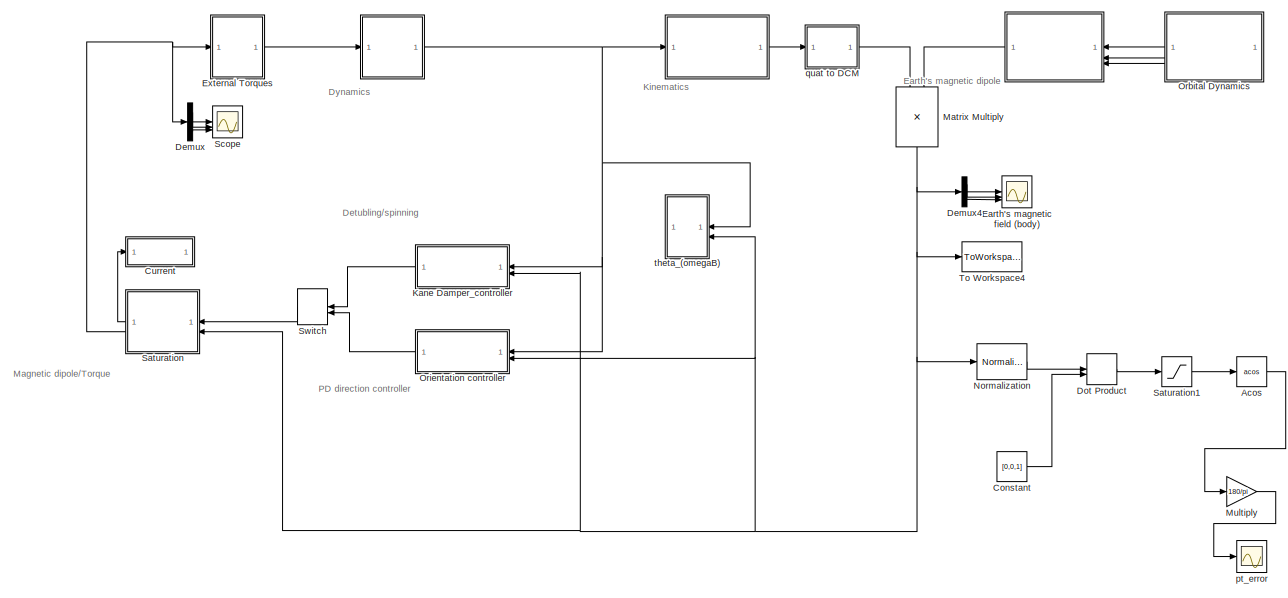
[diagram: root canvas - part 1/2, left side, full height]
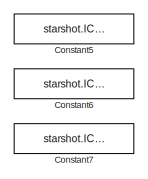
[diagram: root canvas - part 2/2, middle right region]
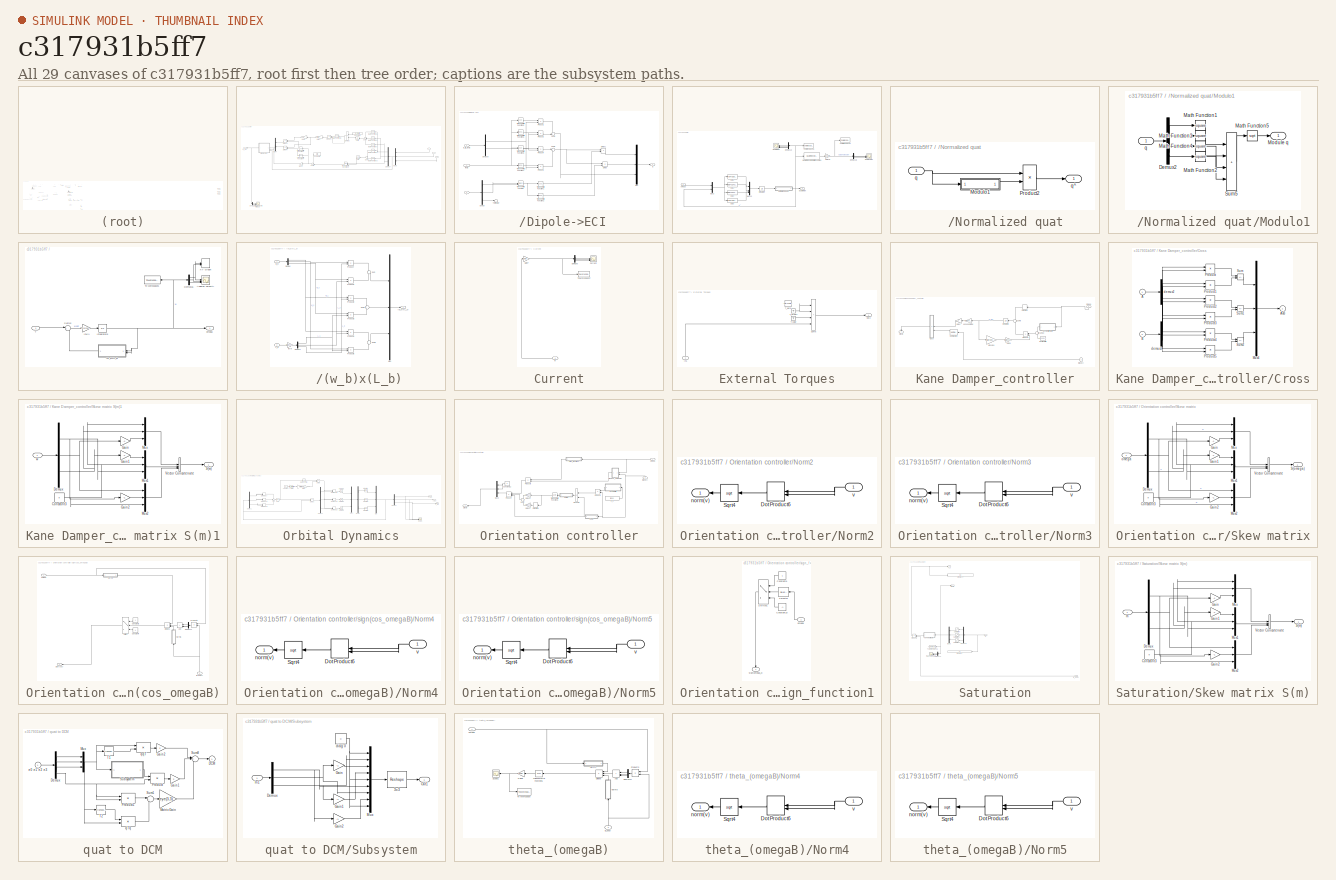
[diagram: thumbnail index - all 29 canvases of the model, root first then tree order]
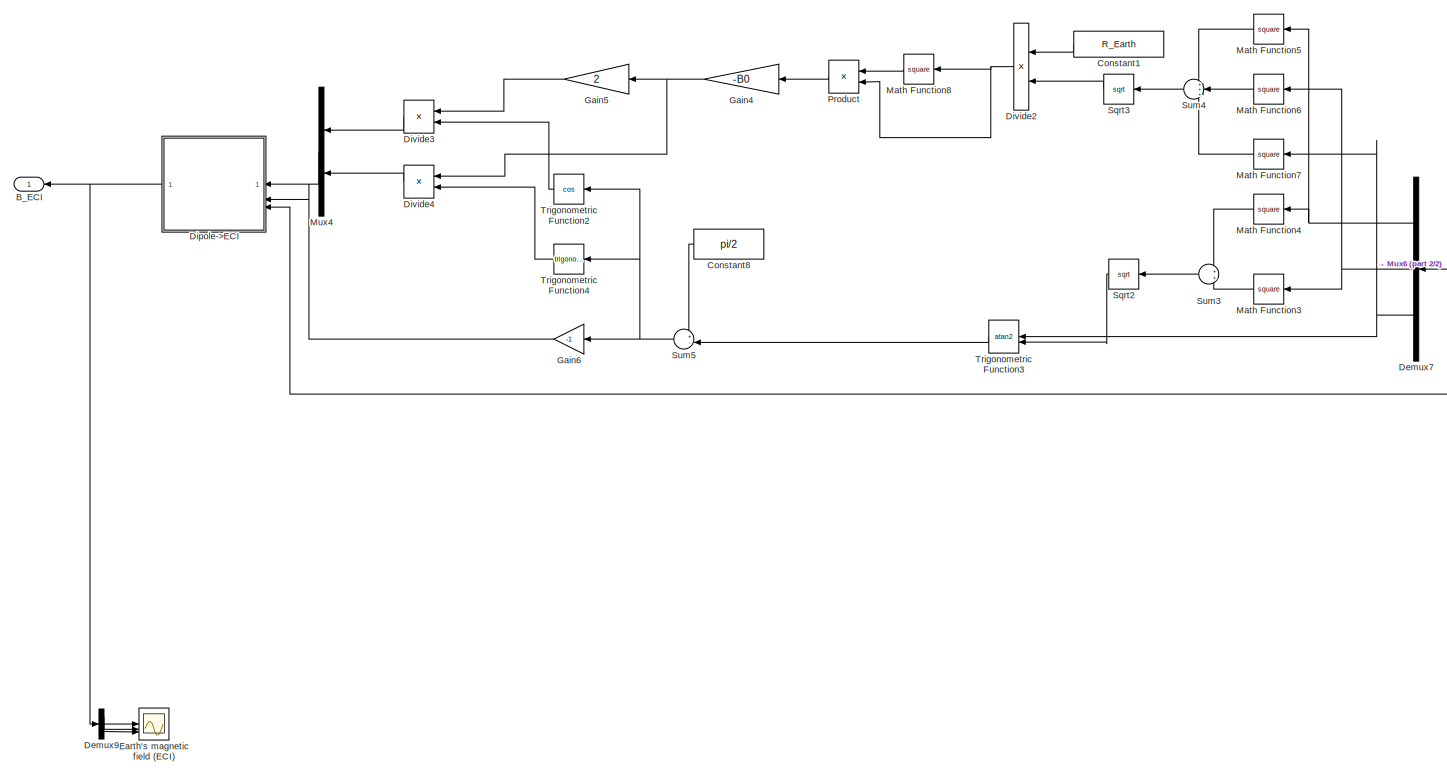
[diagram:   - part 1/2, most of the canvas]
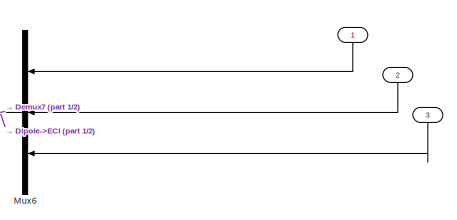
[diagram:   - part 2/2, middle right region]
MODEL slx_c317931b5ff7
KIND model
CONFIG AbsTol = auto
CONFIG EnableMultiTasking = off
CONFIG FixedStep = auto
CONFIG MaxStep = 4.0
CONFIG MinStep = .001
CONFIG RelTol = 1e-6
CONFIG SampleTimeConstraint = Unconstrained
CONFIG SolverName = ode45
CONFIG StartTime = 0
CONFIG StopTime = 350000
BLOCK [SubSystem]  
BLOCK [SubSystem]    
BLOCK [SubSystem]      
BLOCK [SubSystem]      /(w_b)x(L_b)
BLOCK [Outport]      /(w_b)x(L_b)/(w_b)x(L_b)
BLOCK [Demux]      /(w_b)x(L_b)/Demux
  Outputs = 3
BLOCK [Demux]      /(w_b)x(L_b)/Demux1
  Outputs = 3
BLOCK [Gain]      /(w_b)x(L_b)/Inv(I)
  Gain = starshot.IC.massproperties.I
  Multiplication = Matrix(K*u)
BLOCK [Inport]      /(w_b)x(L_b)/L_b
  Port = 2
BLOCK [Mux]      /(w_b)x(L_b)/Mux
  DisplayOption = bar
  Inputs = 3
BLOCK [Product]      /(w_b)x(L_b)/Product
BLOCK [Product]      /(w_b)x(L_b)/Product1
BLOCK [Product]      /(w_b)x(L_b)/Product2
BLOCK [Product]      /(w_b)x(L_b)/Product3
BLOCK [Product]      /(w_b)x(L_b)/Product4
BLOCK [Product]      /(w_b)x(L_b)/Product5
BLOCK [Sum]      /(w_b)x(L_b)/Sum
  Inputs = +|-
BLOCK [Sum]      /(w_b)x(L_b)/Sum1
  Inputs = -|+
BLOCK [Sum]      /(w_b)x(L_b)/Sum2
  Inputs = +|-
BLOCK [Inport]      /(w_b)x(L_b)/w_b
BLOCK [Scope]      /Angular velocity
  Floating = off
  NumInputPorts = 3
  ScopeSpecificationString = Simulink.scopes.TimeScopeBlockCfg('CurrentConfiguration', extmgr.ConfigurationSet(extmgr.Configuration('Core','General UI',true),extmgr.Configuration('Core','Source UI',true),extmgr.Configuration('Sources','WiredSimulink',true,'DataLoggingVariableName','ScopeData1'),extmgr.Configuration('Visuals','Time Domain',true,'SerializedDisplays',{struct('MinYLimReal','-0.741','MaxYLimReal','0.66904','YLabel...<+2792ch>
BLOCK [Demux]      /Demux16
  Outputs = 3
BLOCK [Integrator]      /Integrator6
  InitialCondition = starshot.IC.w
BLOCK [Gain]      /Inv(I)
  Gain = starshot.IC.massproperties.Iinv
  Multiplication = Matrix(K*u)
BLOCK [Sum]      /Sum12
  Inputs = |+-
BLOCK [Inport]      /T
BLOCK [ToWorkspace]      /To Workspace1
  FixptAsFi = on
  MaxDataPoints = inf
  SampleTime = -1
  SaveFormat = Timeseries
  VariableName = w
BLOCK [Record]      /XY Graph
  CompatibilityTag = XY
  FileSettingsInternal = {"entries":[{"content":{"excelSettings":{"content":{},"type":"Streamout.ExcelSettings"}},"type":"Streamout.FileSettingStorage","uuid":""}],"packageUris":["http:\/\/schema.mathworks.com\/mf0\/streamout_blocks\/R2020a"],"version":"1.0"}
  Layout = [1 1]
  SignalsInternal = {"entries":[{"content":{"signals":[{"content":{"blockPath":[],"dimensions":[1],"domain":"","lineColor":"#a2142f","plots":[1],"port":1,"sid":[""],"signalID":6903,"signalName":"Demux16:1"},"type":"RecordBlkView.Signal","uuid":""},{"content":{"blockPath":[],"dimensions":[1],"domain":"","lineColor":"#139fff","plots":[1],"port":2,"sid":[""],"signalID":6907,"signalName":"Demux16:2"},"type":"RecordBlkVie...<+166ch>
  VisualizationBindings = {"xyplotplugin":{"info":[{"series":[{"bindingParametersList":[{"parameter":"X-Axis","signalID":6903,"signalName":"Demux16:1"},{"parameter":"Y-Axis","signalID":6907,"signalName":"Demux16:2"}],"seriesID":40371}],"subplotID":1}]}}
  st = -1
BLOCK [Outport]      /omega
BLOCK [Demux]    /Demux13
BLOCK [Demux]    /Demux18
  Outputs = 3
BLOCK [Scope]    /Euler angles
  Floating = off
  NumInputPorts = 3
  ScopeSpecificationString = Simulink.scopes.TimeScopeBlockCfg('CurrentConfiguration', extmgr.ConfigurationSet(extmgr.Configuration('Core','General UI',true),extmgr.Configuration('Core','Source UI',true),extmgr.Configuration('Sources','WiredSimulink',true,'DataLoggingVariableName','ScopeData2'),extmgr.Configuration('Visuals','Time Domain',true,'SerializedDisplays',{struct('MinYLimReal','-224.97937','MaxYLimReal','224.98449','...<+2815ch>
BLOCK [Gain]    /Gain18
  Gain = 180/pi
BLOCK [Integrator]    /Integrator7
  InitialCondition = q0
BLOCK [Mux]    /Mux10
  DisplayOption = bar
BLOCK [Mux]    /Mux3
  DisplayOption = bar
  Inputs = 2
BLOCK [SubSystem]    /Normalized quat
BLOCK [SubSystem]    /Normalized quat/Modulo1
BLOCK [Demux]    /Normalized quat/Modulo1/Demux2
  DisplayOption = none
BLOCK [Math]    /Normalized quat/Modulo1/Math Function1
  Operator = square
  SignedPower = on
BLOCK [Math]    /Normalized quat/Modulo1/Math Function2
  Operator = square
  SignedPower = on
BLOCK [Math]    /Normalized quat/Modulo1/Math Function3
  Operator = square
  SignedPower = on
BLOCK [Math]    /Normalized quat/Modulo1/Math Function4
  Operator = square
  SignedPower = on
BLOCK [Math]    /Normalized quat/Modulo1/Math Function5
  Operator = sqrt
  SignedPower = on
BLOCK [Outport]    /Normalized quat/Modulo1/Module q
BLOCK [Sum]    /Normalized quat/Modulo1/Sum5
  IconShape = rectangular
  Inputs = |++++
  SaturateOnIntegerOverflow = on
BLOCK [Inport]    /Normalized quat/Modulo1/q
BLOCK [Product]    /Normalized quat/Product2
  Inputs = */
  OutDataTypeStr = Inherit: Same as first input
  SaturateOnIntegerOverflow = on
BLOCK [Inport]    /Normalized quat/q
BLOCK [Outport]    /Normalized quat/q^
BLOCK [Scope]    /Quaternion
  Floating = off
  NumInputPorts = 4
  ScopeSpecificationString = Simulink.scopes.TimeScopeBlockCfg('CurrentConfiguration', extmgr.ConfigurationSet(extmgr.Configuration('Core','General UI',true),extmgr.Configuration('Core','Source UI',true),extmgr.Configuration('Sources','WiredSimulink',true,'DataLoggingVariableName','ScopeData3'),extmgr.Configuration('Visuals','Time Domain',true,'SerializedDisplays',{struct('MinYLimReal','-1.22386','MaxYLimReal','1.22384','YLab...<+3460ch>
BLOCK [Reference]    /Quaternions to Rotation Angles  REF=sharedtransform/Quaternions to Rotation Angles
  AttributesFormatString = Rotation Order: %<rotationOrder>
  SourceBlock = sharedtransform/Quaternions to Rotation Angles
  SourceType = Quat2Ang
BLOCK [ToWorkspace]    /To Workspace2
  FixptAsFi = on
  MaxDataPoints = inf
  SampleTime = -1
  SaveFormat = Timeseries
  VariableName = Eul1
BLOCK [ToWorkspace]    /To Workspace6
  FixptAsFi = on
  MaxDataPoints = inf
  SampleTime = -1
  SaveFormat = Timeseries
  VariableName = q
BLOCK [Inport]    /omega
BLOCK [Fcn]    /qd(0)
  Expr = (u(7)*u(1)-u(6)*u(2)+u(5)*u(3))/2
BLOCK [Fcn]    /qd(1)
  Expr = (u(6)*u(1)+u(7)*u(2)-u(4)*u(3))/2
BLOCK [Fcn]    /qd(2)
  Expr = (-u(5)*u(1)+u(4)*u(2)+u(7)*u(3))/2
BLOCK [Fcn]    /qd(3)
  Expr = (-u(4)*u(1)-u(5)*u(2)-u(6)*u(3))/2
BLOCK [Outport]    /quaternion
BLOCK [Inport]  / 
  NameLocation = right
  Port = 3
BLOCK [Outport]  /B_ECI
BLOCK [Constant]  /Constant1
  Value = R_Earth
BLOCK [Constant]  /Constant8
  Value = pi/2
BLOCK [Demux]  /Demux7
  Outputs = 3
BLOCK [Demux]  /Demux9
  Outputs = 3
BLOCK [SubSystem]  /Dipole->ECI
BLOCK [Inport]  /Dipole->ECI/-theta
  Port = 2
BLOCK [Outport]  /Dipole->ECI/B
BLOCK [Inport]  /Dipole->ECI/B_r,B_theta
BLOCK [Demux]  /Dipole->ECI/Demux
  Outputs = 3
BLOCK [Demux]  /Dipole->ECI/Demux8
  Outputs = 2
BLOCK [Product]  /Dipole->ECI/Divide
  Inputs = **
BLOCK [Product]  /Dipole->ECI/Divide1
  Inputs = **
BLOCK [Mux]  /Dipole->ECI/Mux
  DisplayOption = bar
  Inputs = 3
BLOCK [Product]  /Dipole->ECI/Product1
BLOCK [Product]  /Dipole->ECI/Product2
BLOCK [Product]  /Dipole->ECI/Product3
BLOCK [Product]  /Dipole->ECI/Product4
BLOCK [Sum]  /Dipole->ECI/Sum5
  Inputs = +-|
BLOCK [Sum]  /Dipole->ECI/Sum6
  Inputs = |++
BLOCK [Terminator]  /Dipole->ECI/Terminator
BLOCK [Trigonometry]  /Dipole->ECI/Trigonometric Function
  Operator = atan2
BLOCK [Trigonometry]  /Dipole->ECI/Trigonometric Function1
  Operator = cos
BLOCK [Trigonometry]  /Dipole->ECI/Trigonometric Function2
BLOCK [Trigonometry]  /Dipole->ECI/Trigonometric Function5
  Operator = cos
BLOCK [Trigonometry]  /Dipole->ECI/Trigonometric Function6
BLOCK [Trigonometry]  /Dipole->ECI/Trigonometric Function7
BLOCK [Trigonometry]  /Dipole->ECI/Trigonometric Function8
  Operator = cos
BLOCK [Inport]  /Dipole->ECI/r
  Port = 3
BLOCK [Product]  /Divide2
  Inputs = */
BLOCK [Product]  /Divide3
  Inputs = **
BLOCK [Product]  /Divide4
  Inputs = **
BLOCK [Scope]  /Earth's magnetic field (ECI)
  Floating = off
  NumInputPorts = 3
  ScopeSpecificationString = Simulink.scopes.TimeScopeBlockCfg('CurrentConfiguration', extmgr.ConfigurationSet(extmgr.Configuration('Core','General UI',true),extmgr.Configuration('Core','Source UI',true),extmgr.Configuration('Sources','WiredSimulink',true,'DataLoggingVariableName','ScopeData4'),extmgr.Configuration('Visuals','Time Domain',true,'SerializedDisplays',{struct('MinYLimReal','-0.0000027','MaxYLimReal','0.0000027','...<+2790ch>
BLOCK [Gain]  /Gain4
  Gain = -B0
BLOCK [Gain]  /Gain5
  Gain = 2
BLOCK [Gain]  /Gain6
  Gain = -1
BLOCK [Math]  /Math Function3
  Operator = square
  SignedPower = on
BLOCK [Math]  /Math Function4
  Operator = square
  SignedPower = on
BLOCK [Math]  /Math Function5
  Operator = square
  SignedPower = on
BLOCK [Math]  /Math Function6
  Operator = square
  SignedPower = on
BLOCK [Math]  /Math Function7
  Operator = square
  SignedPower = on
BLOCK [Math]  /Math Function8
  Operator = square
  SignedPower = on
BLOCK [Mux]  /Mux4
  DisplayOption = bar
  Inputs = 2
BLOCK [Mux]  /Mux6
  DisplayOption = bar
  Inputs = 3
BLOCK [Product]  /Product
BLOCK [Sqrt]  /Sqrt2
BLOCK [Sqrt]  /Sqrt3
BLOCK [Sum]  /Sum3
BLOCK [Sum]  /Sum4
  Inputs = +++
BLOCK [Sum]  /Sum5
  Inputs = +-|
BLOCK [Trigonometry]  /Trigonometric Function2
  Operator = cos
BLOCK [Trigonometry]  /Trigonometric Function3
  Operator = atan2
BLOCK [Trigonometry]  /Trigonometric Function4
BLOCK [Trigonometry] Acos
  Operator = acos
BLOCK [Constant] Constant
  Value = [0,0,1]
BLOCK [Constant] Constant5
  Commented = on
  Value = starshot.IC.x
BLOCK [Constant] Constant6
  Commented = on
  Value = starshot.IC.y
BLOCK [Constant] Constant7
  Commented = on
  Value = starshot.IC.z
BLOCK [SubSystem] Current
BLOCK [Scope] Current/Current
  Floating = off
  NumInputPorts = 3
  ScopeSpecificationString = Simulink.scopes.TimeScopeBlockCfg('CurrentConfiguration', extmgr.ConfigurationSet(extmgr.Configuration('Core','General UI',true),extmgr.Configuration('Core','Source UI',true),extmgr.Configuration('Sources','WiredSimulink',true,'DataLoggingVariableName','ScopeData1'),extmgr.Configuration('Visuals','Time Domain',true,'SerializedDisplays',{struct('MinYLimReal','-0.03866','MaxYLimReal','0.03898','YLab...<+2741ch>
BLOCK [Demux] Current/Demux5
  Outputs = 3
BLOCK [Gain] Current/Gain7
  Gain = 1/starshot.magnetorq.k/starshot.magnetorq.n/starshot.magnetorq.A
BLOCK [ToWorkspace] Current/To Workspace7
  FixptAsFi = on
  MaxDataPoints = inf
  SampleTime = -1
  SaveFormat = Timeseries
  VariableName = current
BLOCK [Inport] Current/m
BLOCK [Demux] Demux
  Outputs = 3
BLOCK [Demux] Demux4
  Outputs = 3
BLOCK [DotProduct] Dot Product
  OutDataTypeStr = Inherit: Inherit via internal rule
BLOCK [Scope] Earth's magnetic field (body)
  Floating = off
  NumInputPorts = 3
  ScopeSpecificationString = Simulink.scopes.TimeScopeBlockCfg('CurrentConfiguration', extmgr.ConfigurationSet(extmgr.Configuration('Core','General UI',true),extmgr.Configuration('Core','Source UI',true),extmgr.Configuration('Sources','WiredSimulink',true,'DataLoggingVariableName','ScopeData2'),extmgr.Configuration('Visuals','Time Domain',true,'SerializedDisplays',{struct('MinYLimReal','-0.000034','MaxYLimReal','0.000035','YL...<+2805ch>
BLOCK [SubSystem] External Torques
BLOCK [Inport] External Torques/In1
  NameLocation = right
BLOCK [Outport] External Torques/Out2
BLOCK [Sum] External Torques/Sum6
  IconShape = rectangular
  Inputs = ++++
BLOCK [Constant] External Torques/T_aero
  Commented = on
  Value = -starshot.aerodrag.Ta
BLOCK [Ground] External Torques/T_gravity
BLOCK [Ground] External Torques/T_solar
BLOCK [SubSystem] Kane Damper_controller
BLOCK [Inport] Kane Damper_controller/B(body)
  NameLocation = top
  Port = 2
BLOCK [SubSystem] Kane Damper_controller/Cross
BLOCK [Inport] Kane Damper_controller/Cross/A
BLOCK [Outport] Kane Damper_controller/Cross/AxB
  InitialOutput = 0
BLOCK [Inport] Kane Damper_controller/Cross/B
  Port = 2
BLOCK [Mux] Kane Damper_controller/Cross/Mux4
  Inputs = 3
BLOCK [Product] Kane Damper_controller/Cross/Product
  InputSameDT = on
  OutDataTypeStr = Inherit: Same as first input
  SaturateOnIntegerOverflow = on
BLOCK [Product] Kane Damper_controller/Cross/Product1
  InputSameDT = on
  OutDataTypeStr = Inherit: Same as first input
  SaturateOnIntegerOverflow = on
BLOCK [Product] Kane Damper_controller/Cross/Product2
  InputSameDT = on
  OutDataTypeStr = Inherit: Same as first input
  SaturateOnIntegerOverflow = on
BLOCK [Product] Kane Damper_controller/Cross/Product3
  InputSameDT = on
  OutDataTypeStr = Inherit: Same as first input
  SaturateOnIntegerOverflow = on
BLOCK [Product] Kane Damper_controller/Cross/Product4
  InputSameDT = on
  OutDataTypeStr = Inherit: Same as first input
  SaturateOnIntegerOverflow = on
BLOCK [Product] Kane Damper_controller/Cross/Product5
  InputSameDT = on
  OutDataTypeStr = Inherit: Same as first input
  SaturateOnIntegerOverflow = on
BLOCK [Sum] Kane Damper_controller/Cross/Sum
  IconShape = rectangular
  InputSameDT = on
  Inputs = +-
  OutDataTypeStr = Inherit: Same as first input
  SaturateOnIntegerOverflow = on
BLOCK [Sum] Kane Damper_controller/Cross/Sum1
  IconShape = rectangular
  InputSameDT = on
  Inputs = +-
  OutDataTypeStr = Inherit: Same as first input
  SaturateOnIntegerOverflow = on
BLOCK [Sum] Kane Damper_controller/Cross/Sum2
  IconShape = rectangular
  InputSameDT = on
  Inputs = +-
  OutDataTypeStr = Inherit: Same as first input
  SaturateOnIntegerOverflow = on
BLOCK [Demux] Kane Damper_controller/Cross/demux2
  DisplayOption = none
  Outputs = 3
BLOCK [Demux] Kane Damper_controller/Cross/demux3
  DisplayOption = none
  Outputs = 3
BLOCK [Derivative] Kane Damper_controller/Derivative
BLOCK [Outport] Kane Damper_controller/Dipole
  NameLocation = right
BLOCK [Gain] Kane Damper_controller/Gain 1
  Gain = -1
  NameLocation = top
  OutDataTypeStr = Inherit: Same as input
  ParamDataTypeStr = Inherit: Same as input
  SaturateOnIntegerOverflow = on
BLOCK [Gain] Kane Damper_controller/Gain 8
  Gain = starshot.cmd.c
  OutDataTypeStr = Inherit: Same as input
  ParamDataTypeStr = Inherit: Same as input
  SaturateOnIntegerOverflow = on
BLOCK [Gain] Kane Damper_controller/Id inverse
  Gain = starshot.cmd.invId
  Multiplication = Matrix(K*u)
  OutDataTypeStr = Inherit: Same as input
  ParamDataTypeStr = Inherit: Same as input
  SaturateOnIntegerOverflow = on
BLOCK [Constant] Kane Damper_controller/Identity matrix
  Value = [1 0 0;0 1 0;0 0 1]
BLOCK [Integrator] Kane Damper_controller/Integrator8
  InitialCondition = starshot.cmd.wdb0
BLOCK [Gain] Kane Damper_controller/Kane damping
  Gain = starshot.cmd.c
  OutDataTypeStr = Inherit: Same as input
  ParamDataTypeStr = Inherit: Same as input
  SaturateOnIntegerOverflow = on
BLOCK [Reference] Kane Damper_controller/Normalization  REF=dspmathops/Normalization
  SourceBlock = dspmathops/Normalization
  SourceType = Normalization
BLOCK [Inport] Kane Damper_controller/Omega
  NameLocation = right
BLOCK [Product] Kane Damper_controller/Product1
  Multiplication = Matrix(*)
BLOCK [SubSystem] Kane Damper_controller/Skew matrix S(m)1
BLOCK [Constant] Kane Damper_controller/Skew matrix S(m)1/Constant3
  Value = 0
BLOCK [Demux] Kane Damper_controller/Skew matrix S(m)1/Demux
  Outputs = 3
BLOCK [Gain] Kane Damper_controller/Skew matrix S(m)1/Gain
  Gain = -1
BLOCK [Gain] Kane Damper_controller/Skew matrix S(m)1/Gain1
  Gain = -1
BLOCK [Gain] Kane Damper_controller/Skew matrix S(m)1/Gain2
  Gain = -1
BLOCK [Mux] Kane Damper_controller/Skew matrix S(m)1/Mux
  DisplayOption = bar
  Inputs = 3
BLOCK [Mux] Kane Damper_controller/Skew matrix S(m)1/Mux1
  DisplayOption = bar
  Inputs = 3
BLOCK [Mux] Kane Damper_controller/Skew matrix S(m)1/Mux2
  DisplayOption = bar
  Inputs = 3
BLOCK [Outport] Kane Damper_controller/Skew matrix S(m)1/S(w)
BLOCK [Concatenate] Kane Damper_controller/Skew matrix S(m)1/Vector Concatenate
  ConcatenateDimension = 2
  Mode = Multidimensional array
  NumInputs = 3
BLOCK [Inport] Kane Damper_controller/Skew matrix S(m)1/w
BLOCK [Sum] Kane Damper_controller/Sum10
  InputSameDT = on
  Inputs = +|+
  OutDataTypeStr = Inherit: Same as first input
  SaturateOnIntegerOverflow = on
BLOCK [Sum] Kane Damper_controller/Sum8
  Inputs = --
BLOCK [Product] Matrix Multiply
  Multiplication = Matrix(*)
  NameLocation = left
BLOCK [Gain] Multiply
  Gain = 180/pi
BLOCK [Reference] Normalization  REF=dspmathops/Normalization
  SourceBlock = dspmathops/Normalization
  SourceType = Normalization
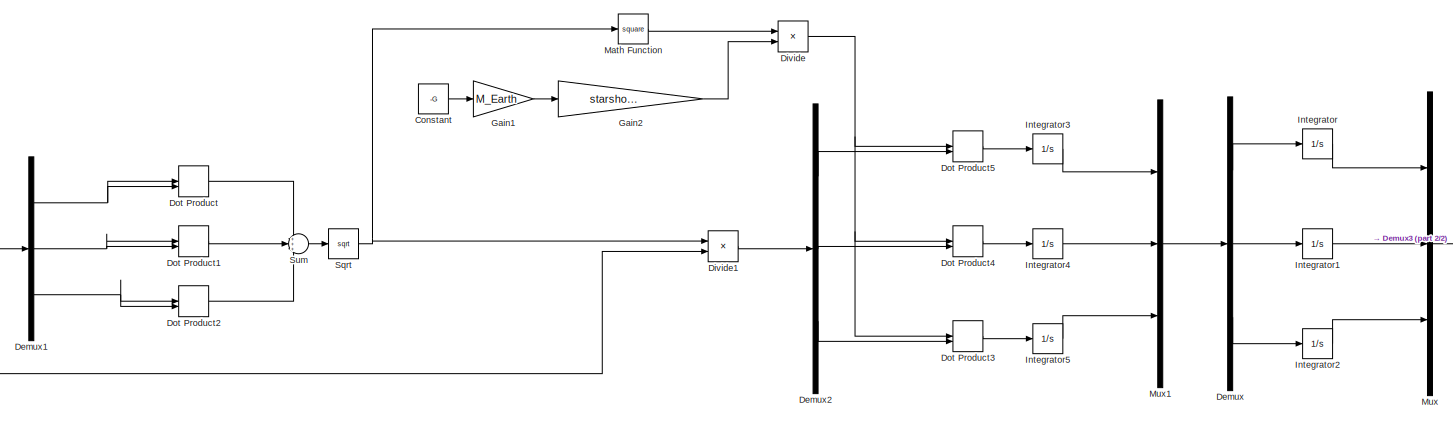
[diagram: Orbital Dynamics - part 1/2, center side, full height]
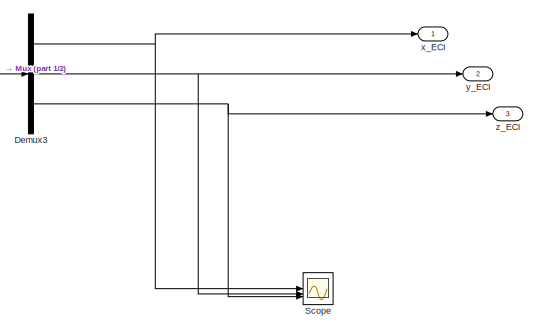
[diagram: Orbital Dynamics - part 2/2, bottom right region]
BLOCK [SubSystem] Orbital Dynamics
BLOCK [Constant] Orbital Dynamics/Constant
  Value = -G
BLOCK [Demux] Orbital Dynamics/Demux
  Outputs = 3
BLOCK [Demux] Orbital Dynamics/Demux1
  Outputs = 3
BLOCK [Demux] Orbital Dynamics/Demux2
  Outputs = 3
BLOCK [Demux] Orbital Dynamics/Demux3
  Outputs = 3
BLOCK [Product] Orbital Dynamics/Divide
  Inputs = /*
BLOCK [Product] Orbital Dynamics/Divide1
  Inputs = /*
BLOCK [DotProduct] Orbital Dynamics/Dot Product
  OutDataTypeStr = Inherit: Inherit via internal rule
BLOCK [DotProduct] Orbital Dynamics/Dot Product1
  OutDataTypeStr = Inherit: Inherit via internal rule
BLOCK [DotProduct] Orbital Dynamics/Dot Product2
  OutDataTypeStr = Inherit: Inherit via internal rule
BLOCK [DotProduct] Orbital Dynamics/Dot Product3
  OutDataTypeStr = Inherit: Inherit via internal rule
BLOCK [DotProduct] Orbital Dynamics/Dot Product4
  OutDataTypeStr = Inherit: Inherit via internal rule
BLOCK [DotProduct] Orbital Dynamics/Dot Product5
  OutDataTypeStr = Inherit: Inherit via internal rule
BLOCK [Gain] Orbital Dynamics/Gain1
  Gain = M_Earth
BLOCK [Gain] Orbital Dynamics/Gain2
  Gain = starshot.IC.massproperties.m
BLOCK [Integrator] Orbital Dynamics/Integrator
  InitialCondition = starshot.IC.x
BLOCK [Integrator] Orbital Dynamics/Integrator1
  InitialCondition = starshot.IC.y
BLOCK [Integrator] Orbital Dynamics/Integrator2
  InitialCondition = starshot.IC.z
BLOCK [Integrator] Orbital Dynamics/Integrator3
  InitialCondition = starshot.IC.xdot
BLOCK [Integrator] Orbital Dynamics/Integrator4
  InitialCondition = starshot.IC.ydot
BLOCK [Integrator] Orbital Dynamics/Integrator5
  InitialCondition = starshot.IC.zdot
BLOCK [Math] Orbital Dynamics/Math Function
  Operator = square
  SignedPower = on
BLOCK [Mux] Orbital Dynamics/Mux
  DisplayOption = bar
  Inputs = 3
BLOCK [Mux] Orbital Dynamics/Mux1
  DisplayOption = bar
  Inputs = 3
BLOCK [Scope] Orbital Dynamics/Scope
  Floating = off
  NumInputPorts = 3
  ScopeSpecificationString = Simulink.scopes.TimeScopeBlockCfg('CurrentConfiguration', extmgr.ConfigurationSet(extmgr.Configuration('Core','General UI',true),extmgr.Configuration('Core','Source UI',true),extmgr.Configuration('Sources','WiredSimulink',true,'DataLoggingVariableName','ScopeData5'),extmgr.Configuration('Visuals','Time Domain',true,'SerializedDisplays',{struct('MinYLimReal','-11742729.24308','MaxYLimReal','8605858...<+2827ch>
BLOCK [Sqrt] Orbital Dynamics/Sqrt
BLOCK [Sum] Orbital Dynamics/Sum
  Inputs = +++
BLOCK [Outport] Orbital Dynamics/x_ECI
BLOCK [Outport] Orbital Dynamics/y_ECI
  Port = 2
BLOCK [Outport] Orbital Dynamics/z_ECI
  Port = 3
BLOCK [SubSystem] Orientation controller
BLOCK [Inport] Orientation controller/B(body)
  NameLocation = right
  Port = 2
BLOCK [Constant] Orientation controller/Constant12
  Value = 0
BLOCK [Derivative] Orientation controller/Derivative
BLOCK [Outport] Orientation controller/Dipole
BLOCK [Gain] Orientation controller/Gain10
  Gain = starshot.controller.Kp
BLOCK [Gain] Orientation controller/Gain11
  Gain = starshot.controller.Kd
BLOCK [Mux] Orientation controller/Mux2
  DisplayOption = bar
  Inputs = 3
BLOCK [SubSystem] Orientation controller/Norm2
BLOCK [DotProduct] Orientation controller/Norm2/Dot Product6
  OutDataTypeStr = Inherit: Inherit via internal rule
BLOCK [Sqrt] Orientation controller/Norm2/Sqrt4
BLOCK [Outport] Orientation controller/Norm2/norm(v)
BLOCK [Inport] Orientation controller/Norm2/v
BLOCK [SubSystem] Orientation controller/Norm3
BLOCK [DotProduct] Orientation controller/Norm3/Dot Product6
  OutDataTypeStr = Inherit: Inherit via internal rule
BLOCK [Sqrt] Orientation controller/Norm3/Sqrt4
BLOCK [Outport] Orientation controller/Norm3/norm(v)
BLOCK [Inport] Orientation controller/Norm3/v
BLOCK [Inport] Orientation controller/Omega
BLOCK [Product] Orientation controller/Product4
  Multiplication = Matrix(*)
BLOCK [Product] Orientation controller/Product6
  Inputs = */
BLOCK [Product] Orientation controller/Product7
  Inputs = **/
BLOCK [Product] Orientation controller/Product8
  Inputs = **
BLOCK [SubSystem] Orientation controller/Skew matrix
BLOCK [Constant] Orientation controller/Skew matrix/Constant3
  Value = 0
BLOCK [Demux] Orientation controller/Skew matrix/Demux
  Outputs = 3
BLOCK [Gain] Orientation controller/Skew matrix/Gain
  Gain = -1
BLOCK [Gain] Orientation controller/Skew matrix/Gain1
  Gain = -1
BLOCK [Gain] Orientation controller/Skew matrix/Gain2
  Gain = -1
BLOCK [Mux] Orientation controller/Skew matrix/Mux
  DisplayOption = bar
  Inputs = 3
BLOCK [Mux] Orientation controller/Skew matrix/Mux1
  DisplayOption = bar
  Inputs = 3
BLOCK [Mux] Orientation controller/Skew matrix/Mux2
  DisplayOption = bar
  Inputs = 3
BLOCK [Outport] Orientation controller/Skew matrix/S(omega)
BLOCK [Concatenate] Orientation controller/Skew matrix/Vector Concatenate
  ConcatenateDimension = 2
  Mode = Multidimensional array
  NumInputs = 3
BLOCK [Inport] Orientation controller/Skew matrix/omega
BLOCK [Sum] Orientation controller/Sum7
  Inputs = +|+
BLOCK [Trigonometry] Orientation controller/Trigonometric Function5
  Operator = asin
BLOCK [Constant] Orientation controller/e_z
  Value = [0 0 1]
BLOCK [SubSystem] Orientation controller/sign(cos_omegaB)
BLOCK [Sum] Orientation controller/sign(cos_omegaB)/Add
  IconShape = rectangular
  Inputs = 3
BLOCK [Inport] Orientation controller/sign(cos_omegaB)/B(body)
  NameLocation = right
  Port = 2
BLOCK [Constant] Orientation controller/sign(cos_omegaB)/Constant3
BLOCK [Constant] Orientation controller/sign(cos_omegaB)/Constant4
  Value = -1
BLOCK [Demux] Orientation controller/sign(cos_omegaB)/Demux11
  Outputs = 3
BLOCK [Product] Orientation controller/sign(cos_omegaB)/Divide6
  Inputs = /*/
BLOCK [SubSystem] Orientation controller/sign(cos_omegaB)/Norm4
BLOCK [DotProduct] Orientation controller/sign(cos_omegaB)/Norm4/Dot Product6
  OutDataTypeStr = Inherit: Inherit via internal rule
BLOCK [Sqrt] Orientation controller/sign(cos_omegaB)/Norm4/Sqrt4
BLOCK [Outport] Orientation controller/sign(cos_omegaB)/Norm4/norm(v)
BLOCK [Inport] Orientation controller/sign(cos_omegaB)/Norm4/v
BLOCK [SubSystem] Orientation controller/sign(cos_omegaB)/Norm5
  NameLocation = left
BLOCK [DotProduct] Orientation controller/sign(cos_omegaB)/Norm5/Dot Product6
  OutDataTypeStr = Inherit: Inherit via internal rule
BLOCK [Sqrt] Orientation controller/sign(cos_omegaB)/Norm5/Sqrt4
BLOCK [Outport] Orientation controller/sign(cos_omegaB)/Norm5/norm(v)
BLOCK [Inport] Orientation controller/sign(cos_omegaB)/Norm5/v
BLOCK [Product] Orientation controller/sign(cos_omegaB)/Product3
BLOCK [Switch] Orientation controller/sign(cos_omegaB)/Switch
  Criteria = u2 > Threshold
  InputSameDT = off
  SaturateOnIntegerOverflow = off
  ZeroCross = off
BLOCK [Inport] Orientation controller/sign(cos_omegaB)/omega
BLOCK [Outport] Orientation controller/sign(cos_omegaB)/sign(cos)
BLOCK [SubSystem] Orientation controller/sign_function1
BLOCK [Constant] Orientation controller/sign_function1/Constant10
  Value = -1
BLOCK [Constant] Orientation controller/sign_function1/Constant9
BLOCK [Selector] Orientation controller/sign_function1/Selector
  IndexOptions = Index vector (dialog)
  Indices = [3]
  InputPortWidth = 3
  OutputSizes = 1
BLOCK [Switch] Orientation controller/sign_function1/Switch1
  InputSameDT = off
  SaturateOnIntegerOverflow = off
  ZeroCross = off
BLOCK [Inport] Orientation controller/sign_function1/omega
BLOCK [Outport] Orientation controller/sign_function1/sign(omega_z)
  NameLocation = right
BLOCK [SubSystem] Saturation
BLOCK [Inport] Saturation/B_body
  Port = 2
BLOCK [Demux] Saturation/Demux10
  Outputs = 3
BLOCK [Demux] Saturation/Demux8
  Outputs = 3
BLOCK [Outport] Saturation/Dipole
BLOCK [Display] Saturation/Display4
  Decimation = 1
BLOCK [Display] Saturation/Display6
  Decimation = 1
BLOCK [Mux] Saturation/Mux9
  DisplayOption = bar
  Inputs = 3
BLOCK [Product] Saturation/Product2
  Multiplication = Matrix(*)
BLOCK [Saturate] Saturation/Saturation
  LowerLimit = -starshot.magnetorq.m_max_x
  UpperLimit = starshot.magnetorq.m_max_x
BLOCK [Saturate] Saturation/Saturation1
  LowerLimit = -starshot.magnetorq.m_max_y
  UpperLimit = starshot.magnetorq.m_max_y
BLOCK [Saturate] Saturation/Saturation2
  LowerLimit = -starshot.magnetorq.m_max_z
  UpperLimit = starshot.magnetorq.m_max_z
BLOCK [SubSystem] Saturation/Skew matrix S(m)
BLOCK [Constant] Saturation/Skew matrix S(m)/Constant3
  Value = 0
BLOCK [Demux] Saturation/Skew matrix S(m)/Demux
  Outputs = 3
BLOCK [Gain] Saturation/Skew matrix S(m)/Gain
  Gain = -1
BLOCK [Gain] Saturation/Skew matrix S(m)/Gain1
  Gain = -1
BLOCK [Gain] Saturation/Skew matrix S(m)/Gain2
  Gain = -1
BLOCK [Mux] Saturation/Skew matrix S(m)/Mux
  DisplayOption = bar
  Inputs = 3
BLOCK [Mux] Saturation/Skew matrix S(m)/Mux1
  DisplayOption = bar
  Inputs = 3
BLOCK [Mux] Saturation/Skew matrix S(m)/Mux2
  DisplayOption = bar
  Inputs = 3
BLOCK [Outport] Saturation/Skew matrix S(m)/S(m)
BLOCK [Concatenate] Saturation/Skew matrix S(m)/Vector Concatenate
  ConcatenateDimension = 2
  Mode = Multidimensional array
  NumInputs = 3
BLOCK [Inport] Saturation/Skew matrix S(m)/m
BLOCK [Outport] Saturation/T_c
  Port = 2
BLOCK [ToWorkspace] Saturation/To Workspace5
  FixptAsFi = on
  MaxDataPoints = inf
  SampleTime = -1
  SaveFormat = Timeseries
  VariableName = m_out
BLOCK [Inport] Saturation/m
BLOCK [Scope] Saturation/magnetic dipole
  Floating = off
  NumInputPorts = 3
  ScopeSpecificationString = Simulink.scopes.TimeScopeBlockCfg('CurrentConfiguration', extmgr.ConfigurationSet(extmgr.Configuration('Core','General UI',true),extmgr.Configuration('Core','Source UI',true),extmgr.Configuration('Sources','WiredSimulink',true,'DataLoggingVariableName','ScopeData1'),extmgr.Configuration('Visuals','Time Domain',true,'SerializedDisplays',{struct('MinYLimReal','-0.025','MaxYLimReal','0.025','YLabelRe...<+2739ch>
BLOCK [Saturate] Saturation1
  LowerLimit = -1
  UpperLimit = 1
BLOCK [Scope] Scope
  Floating = off
  NumInputPorts = 3
  ScopeSpecificationString = Simulink.scopes.TimeScopeBlockCfg('CurrentConfiguration', extmgr.ConfigurationSet(extmgr.Configuration('Core','General UI',true),extmgr.Configuration('Core','Source UI',true),extmgr.Configuration('Sources','WiredSimulink',true,'DataLoggingVariableName','ScopeData1'),extmgr.Configuration('Visuals','Time Domain',true,'SerializedDisplays',{struct('MinYLimReal','-0.000001','MaxYLimReal','0.000001','YL...<+2802ch>
BLOCK [ManualSwitch] Switch
  CurrentSetting = 0
BLOCK [ToWorkspace] To Workspace4
  FixptAsFi = on
  MaxDataPoints = inf
  SampleTime = -1
  SaveFormat = Timeseries
  VariableName = b
BLOCK [Scope] pt_error
  Floating = off
  NumInputPorts = 1
  ScopeSpecificationString = Simulink.scopes.TimeScopeBlockCfg('CurrentConfiguration', extmgr.ConfigurationSet(extmgr.Configuration('Core','General UI',true),extmgr.Configuration('Core','Source UI',true),extmgr.Configuration('Sources','WiredSimulink',true,'DataLoggingVariableName','ScopeData1'),extmgr.Configuration('Visuals','Time Domain',true,'SerializedDisplays',{struct('MinYLimReal','-11.18816','MaxYLimReal','102.2498','YL...<+1428ch>
BLOCK [SubSystem] quat to DCM
  NameLocation = top
  ShowPortLabels = none
BLOCK [Outport] quat to DCM/DCM
  InitialOutput = 0
BLOCK [Demux] quat to DCM/Demux
  DisplayOption = none
BLOCK [Gain] quat to DCM/Gain1
  Gain = 2
  OutDataTypeStr = Inherit: Same as input
  ParamDataTypeStr = Inherit: Same as input
  SaturateOnIntegerOverflow = on
BLOCK [Gain] quat to DCM/Gain2
  Gain = 2
  OutDataTypeStr = Inherit: Same as input
  ParamDataTypeStr = Inherit: Same as input
  SaturateOnIntegerOverflow = on
BLOCK [Gain] quat to DCM/Matrix Gain
  Gain = eye(3,3)
  OutDataTypeStr = Inherit: Same as input
  ParamDataTypeStr = Inherit: Same as input
  SaturateOnIntegerOverflow = on
BLOCK [Mux] quat to DCM/Mux
  DisplayOption = bar
  Inputs = 3
BLOCK [Product] quat to DCM/Product
  InputSameDT = on
  OutDataTypeStr = Inherit: Same as first input
  SaturateOnIntegerOverflow = on
BLOCK [Product] quat to DCM/Product1
  InputSameDT = on
  OutDataTypeStr = Inherit: Same as first input
  SaturateOnIntegerOverflow = on
BLOCK [SubSystem] quat to DCM/Subsystem
BLOCK [Reshape] quat to DCM/Subsystem/3x3
  OutputDimensionality = Customize
  OutputDimensions = [3,3]
BLOCK [Demux] quat to DCM/Subsystem/Demux
  DisplayOption = none
  Outputs = 3
BLOCK [Gain] quat to DCM/Subsystem/Gain
  Gain = -1
  OutDataTypeStr = Inherit: Same as input
  ParamDataTypeStr = Inherit: Same as input
  SaturateOnIntegerOverflow = on
BLOCK [Gain] quat to DCM/Subsystem/Gain1
  Gain = -1
  OutDataTypeStr = Inherit: Same as input
  ParamDataTypeStr = Inherit: Same as input
  SaturateOnIntegerOverflow = on
BLOCK [Gain] quat to DCM/Subsystem/Gain2
  Gain = -1
  OutDataTypeStr = Inherit: Same as input
  ParamDataTypeStr = Inherit: Same as input
  SaturateOnIntegerOverflow = on
BLOCK [Inport] quat to DCM/Subsystem/In1
BLOCK [Mux] quat to DCM/Subsystem/Mux
  DisplayOption = bar
  Inputs = 9
BLOCK [Outport] quat to DCM/Subsystem/Out1
BLOCK [Constant] quat to DCM/Subsystem/diag 0 
  Value = 0
BLOCK [Sum] quat to DCM/Sum1
  InputSameDT = on
  Inputs = |+-
  OutDataTypeStr = Inherit: Same as first input
  SaturateOnIntegerOverflow = on
BLOCK [Sum] quat to DCM/Sum8
  InputSameDT = on
  Inputs = |+-+
  OutDataTypeStr = Inherit: Same as first input
  SaturateOnIntegerOverflow = on
BLOCK [Math] quat to DCM/T1
  Operator = transpose
  SignedPower = on
BLOCK [Math] quat to DCM/T2
  Operator = transpose
  SignedPower = on
BLOCK [Inport] quat to DCM/e0 e1 e2 e3
BLOCK [Product] quat to DCM/qTq
  InputSameDT = on
  Multiplication = Matrix(*)
  OutDataTypeStr = Inherit: Same as first input
  SaturateOnIntegerOverflow = on
BLOCK [Product] quat to DCM/qqT
  InputSameDT = on
  Multiplication = Matrix(*)
  OutDataTypeStr = Inherit: Same as first input
  SaturateOnIntegerOverflow = on
BLOCK [SubSystem] theta_(omegaB)
BLOCK [Sum] theta_(omegaB)/Add
  IconShape = rectangular
  Inputs = 3
BLOCK [Inport] theta_(omegaB)/B_body
  NameLocation = right
  Port = 2
BLOCK [Demux] theta_(omegaB)/Demux11
  Outputs = 3
BLOCK [Product] theta_(omegaB)/Divide6
  Inputs = /*/
BLOCK [Gain] theta_(omegaB)/Gain8
  Gain = 180/pi
BLOCK [SubSystem] theta_(omegaB)/Norm4
BLOCK [DotProduct] theta_(omegaB)/Norm4/Dot Product6
  OutDataTypeStr = Inherit: Inherit via internal rule
BLOCK [Sqrt] theta_(omegaB)/Norm4/Sqrt4
BLOCK [Outport] theta_(omegaB)/Norm4/norm(v)
BLOCK [Inport] theta_(omegaB)/Norm4/v
BLOCK [SubSystem] theta_(omegaB)/Norm5
  NameLocation = left
BLOCK [DotProduct] theta_(omegaB)/Norm5/Dot Product6
  OutDataTypeStr = Inherit: Inherit via internal rule
BLOCK [Sqrt] theta_(omegaB)/Norm5/Sqrt4
BLOCK [Outport] theta_(omegaB)/Norm5/norm(v)
BLOCK [Inport] theta_(omegaB)/Norm5/v
BLOCK [Product] theta_(omegaB)/Product3
BLOCK [Scope] theta_(omegaB)/Scope1
  Floating = off
  NumInputPorts = 1
  ScopeSpecificationString = Simulink.scopes.TimeScopeBlockCfg('CurrentConfiguration', extmgr.ConfigurationSet(extmgr.Configuration('Core','General UI',true),extmgr.Configuration('Core','Source UI',true),extmgr.Configuration('Sources','WiredSimulink',true,'DataLoggingVariableName','ScopeData1'),extmgr.Configuration('Visuals','Time Domain',true,'SerializedDisplays',{struct('MinYLimReal','-7.54846','MaxYLimReal','74.06146','YLa...<+1441ch>
BLOCK [ToWorkspace] theta_(omegaB)/To Workspace
  FixptAsFi = on
  MaxDataPoints = inf
  SampleTime = -1
  SaveFormat = Timeseries
  VariableName = real_angle
BLOCK [Trigonometry] theta_(omegaB)/Trigonometric Function5
  Operator = acos
BLOCK [Inport] theta_(omegaB)/omega
ANNOTATION (root): Kinematics
ANNOTATION (root): Detubling/spinning
ANNOTATION (root): PD direction controller
ANNOTATION (root): Dynamics
ANNOTATION (root): Magnetic dipole/Torque
ANNOTATION (root): Earth's magnetic dipole
NET      /(w_b)x(L_b)/Demux1:1 ->      /(w_b)x(L_b)/Product3:2,      /(w_b)x(L_b)/Product5:2
NET      /(w_b)x(L_b)/Demux1:2 ->      /(w_b)x(L_b)/Product1:2,      /(w_b)x(L_b)/Product4:2
NET      /(w_b)x(L_b)/Demux1:3 ->      /(w_b)x(L_b)/Product2:2,      /(w_b)x(L_b)/Product:2
NET      /(w_b)x(L_b)/Demux:1 ->      /(w_b)x(L_b)/Product2:1,      /(w_b)x(L_b)/Product4:1
NET      /(w_b)x(L_b)/Demux:2 ->      /(w_b)x(L_b)/Product5:1,      /(w_b)x(L_b)/Product:1
NET      /(w_b)x(L_b)/Demux:3 ->      /(w_b)x(L_b)/Product1:1,      /(w_b)x(L_b)/Product3:1
LINE      /(w_b)x(L_b)/Inv(I):1 ->      /(w_b)x(L_b)/Demux1:1
LINE      /(w_b)x(L_b)/L_b:1 ->      /(w_b)x(L_b)/Inv(I):1
LINE      /(w_b)x(L_b)/Mux:1 ->      /(w_b)x(L_b)/(w_b)x(L_b):1
LINE      /(w_b)x(L_b)/Product1:1 ->      /(w_b)x(L_b)/Sum:2
LINE      /(w_b)x(L_b)/Product2:1 ->      /(w_b)x(L_b)/Sum1:1
LINE      /(w_b)x(L_b)/Product3:1 ->      /(w_b)x(L_b)/Sum1:2
LINE      /(w_b)x(L_b)/Product4:1 ->      /(w_b)x(L_b)/Sum2:1
LINE      /(w_b)x(L_b)/Product5:1 ->      /(w_b)x(L_b)/Sum2:2
LINE      /(w_b)x(L_b)/Product:1 ->      /(w_b)x(L_b)/Sum:1
LINE      /(w_b)x(L_b)/Sum1:1 ->      /(w_b)x(L_b)/Mux:2
LINE      /(w_b)x(L_b)/Sum2:1 ->      /(w_b)x(L_b)/Mux:3
LINE      /(w_b)x(L_b)/Sum:1 ->      /(w_b)x(L_b)/Mux:1
LINE      /(w_b)x(L_b)/w_b:1 ->      /(w_b)x(L_b)/Demux:1
LINE      /(w_b)x(L_b):1 ->      /Sum12:2
NET      /Demux16:1 ->      /Angular velocity:1,      /XY Graph:1
NET      /Demux16:2 ->      /Angular velocity:2,      /XY Graph:2
LINE      /Demux16:3 ->      /Angular velocity:3
NET      /Integrator6:1 ->      /(w_b)x(L_b):1,      /(w_b)x(L_b):2,      /Demux16:1,      /To Workspace1:1,      /omega:1
LINE      /Inv(I):1 ->      /Integrator6:1
LINE      /Sum12:1 ->      /Inv(I):1
LINE      /T:1 ->      /Sum12:1
NET      :1 ->    :1, Kane Damper_controller:1, Orientation controller:1, theta_(omegaB):1
LINE    /Demux13:1 ->    /Quaternion:1
LINE    /Demux13:2 ->    /Quaternion:2
LINE    /Demux13:3 ->    /Quaternion:3
LINE    /Demux13:4 ->    /Quaternion:4
LINE    /Demux18:1 ->    /Euler angles:1
LINE    /Demux18:2 ->    /Euler angles:2
LINE    /Demux18:3 ->    /Euler angles:3
NET    /Gain18:1 ->    /Demux18:1,    /To Workspace2:1
LINE    /Integrator7:1 ->    /Normalized quat:1
LINE    /Mux10:1 ->    /Integrator7:1
NET    /Mux3:1 ->    /qd(0):1,    /qd(1):1,    /qd(2):1,    /qd(3):1
LINE    /Normalized quat/Modulo1/Demux2:1 ->    /Normalized quat/Modulo1/Math Function1:1
LINE    /Normalized quat/Modulo1/Demux2:2 ->    /Normalized quat/Modulo1/Math Function3:1
LINE    /Normalized quat/Modulo1/Demux2:3 ->    /Normalized quat/Modulo1/Math Function4:1
LINE    /Normalized quat/Modulo1/Demux2:4 ->    /Normalized quat/Modulo1/Math Function2:1
LINE    /Normalized quat/Modulo1/Math Function1:1 ->    /Normalized quat/Modulo1/Sum5:1
LINE    /Normalized quat/Modulo1/Math Function2:1 ->    /Normalized quat/Modulo1/Sum5:4
LINE    /Normalized quat/Modulo1/Math Function3:1 ->    /Normalized quat/Modulo1/Sum5:2
LINE    /Normalized quat/Modulo1/Math Function4:1 ->    /Normalized quat/Modulo1/Sum5:3
LINE    /Normalized quat/Modulo1/Math Function5:1 ->    /Normalized quat/Modulo1/Module q:1
LINE    /Normalized quat/Modulo1/Sum5:1 ->    /Normalized quat/Modulo1/Math Function5:1
LINE    /Normalized quat/Modulo1/q:1 ->    /Normalized quat/Modulo1/Demux2:1
LINE    /Normalized quat/Modulo1:1 ->    /Normalized quat/Product2:2
LINE    /Normalized quat/Product2:1 ->    /Normalized quat/q^:1
NET    /Normalized quat/q:1 ->    /Normalized quat/Modulo1:1,    /Normalized quat/Product2:1
NET    /Normalized quat:1 ->    /Demux13:1,    /Mux3:2,    /Quaternions to Rotation Angles:1,    /To Workspace6:1,    /quaternion:1
LINE    /Quaternions to Rotation Angles:1 ->    /Gain18:1
LINE    /omega:1 ->    /Mux3:1
LINE    /qd(0):1 ->    /Mux10:1
LINE    /qd(1):1 ->    /Mux10:2
LINE    /qd(2):1 ->    /Mux10:3
LINE    /qd(3):1 ->    /Mux10:4
LINE    :1 -> quat to DCM:1
NET  / :1 ->  /Mux6:1,  /Mux6:2,  /Mux6:3
LINE  /Constant1:1 ->  /Divide2:1
LINE  /Constant8:1 ->  /Sum5:1
NET  /Demux7:1 ->  /Math Function4:1,  /Math Function5:1
NET  /Demux7:2 ->  /Math Function3:1,  /Math Function6:1
NET  /Demux7:3 ->  /Math Function7:1,  /Trigonometric Function3:1
LINE  /Demux9:1 ->  /Earth's magnetic field (ECI):1
LINE  /Demux9:2 ->  /Earth's magnetic field (ECI):2
LINE  /Demux9:3 ->  /Earth's magnetic field (ECI):3
NET  /Dipole->ECI/-theta:1 ->  /Dipole->ECI/Trigonometric Function5:1,  /Dipole->ECI/Trigonometric Function6:1,  /Dipole->ECI/Trigonometric Function7:1,  /Dipole->ECI/Trigonometric Function8:1
LINE  /Dipole->ECI/B_r,B_theta:1 ->  /Dipole->ECI/Demux8:1
NET  /Dipole->ECI/Demux8:1 ->  /Dipole->ECI/Product1:2,  /Dipole->ECI/Product3:2
NET  /Dipole->ECI/Demux8:2 ->  /Dipole->ECI/Product2:2,  /Dipole->ECI/Product4:2
LINE  /Dipole->ECI/Demux:1 ->  /Dipole->ECI/Trigonometric Function:2
LINE  /Dipole->ECI/Demux:2 ->  /Dipole->ECI/Trigonometric Function:1
LINE  /Dipole->ECI/Demux:3 ->  /Dipole->ECI/Terminator:1
LINE  /Dipole->ECI/Divide1:1 ->  /Dipole->ECI/Mux:1
LINE  /Dipole->ECI/Divide:1 ->  /Dipole->ECI/Mux:2
LINE  /Dipole->ECI/Mux:1 ->  /Dipole->ECI/B:1
LINE  /Dipole->ECI/Product1:1 ->  /Dipole->ECI/Sum5:1
LINE  /Dipole->ECI/Product2:1 ->  /Dipole->ECI/Sum5:2
LINE  /Dipole->ECI/Product3:1 ->  /Dipole->ECI/Sum6:2
LINE  /Dipole->ECI/Product4:1 ->  /Dipole->ECI/Sum6:1
LINE  /Dipole->ECI/Sum5:1 ->  /Dipole->ECI/Mux:3
NET  /Dipole->ECI/Sum6:1 ->  /Dipole->ECI/Divide1:1,  /Dipole->ECI/Divide:1
LINE  /Dipole->ECI/Trigonometric Function1:1 ->  /Dipole->ECI/Divide1:2
LINE  /Dipole->ECI/Trigonometric Function2:1 ->  /Dipole->ECI/Divide:2
LINE  /Dipole->ECI/Trigonometric Function5:1 ->  /Dipole->ECI/Product1:1
LINE  /Dipole->ECI/Trigonometric Function6:1 ->  /Dipole->ECI/Product2:1
LINE  /Dipole->ECI/Trigonometric Function7:1 ->  /Dipole->ECI/Product3:1
LINE  /Dipole->ECI/Trigonometric Function8:1 ->  /Dipole->ECI/Product4:1
NET  /Dipole->ECI/Trigonometric Function:1 ->  /Dipole->ECI/Trigonometric Function1:1,  /Dipole->ECI/Trigonometric Function2:1
LINE  /Dipole->ECI/r:1 ->  /Dipole->ECI/Demux:1
NET  /Dipole->ECI:1 ->  /B_ECI:1,  /Demux9:1
NET  /Divide2:1 ->  /Math Function8:1,  /Product:2
LINE  /Divide3:1 ->  /Mux4:1
LINE  /Divide4:1 ->  /Mux4:2
NET  /Gain4:1 ->  /Divide4:1,  /Gain5:1
LINE  /Gain5:1 ->  /Divide3:1
LINE  /Gain6:1 ->  /Dipole->ECI:2
LINE  /Math Function3:1 ->  /Sum3:2
LINE  /Math Function4:1 ->  /Sum3:1
LINE  /Math Function5:1 ->  /Sum4:1
LINE  /Math Function6:1 ->  /Sum4:2
LINE  /Math Function7:1 ->  /Sum4:3
LINE  /Math Function8:1 ->  /Product:1
LINE  /Mux4:1 ->  /Dipole->ECI:1
NET  /Mux6:1 ->  /Demux7:1,  /Dipole->ECI:3
LINE  /Product:1 ->  /Gain4:1
LINE  /Sqrt2:1 ->  /Trigonometric Function3:2
LINE  /Sqrt3:1 ->  /Divide2:2
LINE  /Sum3:1 ->  /Sqrt2:1
LINE  /Sum4:1 ->  /Sqrt3:1
NET  /Sum5:1 ->  /Gain6:1,  /Trigonometric Function2:1,  /Trigonometric Function4:1
LINE  /Trigonometric Function2:1 ->  /Divide3:2
LINE  /Trigonometric Function3:1 ->  /Sum5:2
LINE  /Trigonometric Function4:1 ->  /Divide4:2
LINE  :1 -> Matrix Multiply:2
LINE Acos:1 -> Multiply:1
LINE Constant:1 -> Dot Product:2
LINE Current/Demux5:1 -> Current/Current:1
LINE Current/Demux5:2 -> Current/Current:2
LINE Current/Demux5:3 -> Current/Current:3
NET Current/Gain7:1 -> Current/Demux5:1, Current/To Workspace7:1
LINE Current/m:1 -> Current/Gain7:1
LINE Demux4:1 -> Earth's magnetic field (body):1
LINE Demux4:2 -> Earth's magnetic field (body):2
LINE Demux4:3 -> Earth's magnetic field (body):3
LINE Demux:1 -> Scope:1
LINE Demux:2 -> Scope:2
LINE Demux:3 -> Scope:3
LINE Dot Product:1 -> Saturation1:1
LINE External Torques/In1:1 -> External Torques/Sum6:4
LINE External Torques/Sum6:1 -> External Torques/Out2:1
NET External Torques/T_gravity:1 -> External Torques/Sum6:1, External Torques/Sum6:2
LINE External Torques/T_solar:1 -> External Torques/Sum6:3
LINE External Torques:1 ->      :1
LINE Kane Damper_controller/B(body):1 -> Kane Damper_controller/Normalization:1
LINE Kane Damper_controller/Cross/A:1 -> Kane Damper_controller/Cross/demux2:1
LINE Kane Damper_controller/Cross/B:1 -> Kane Damper_controller/Cross/demux3:1
LINE Kane Damper_controller/Cross/Mux4:1 -> Kane Damper_controller/Cross/AxB:1
LINE Kane Damper_controller/Cross/Product1:1 -> Kane Damper_controller/Cross/Sum:2
LINE Kane Damper_controller/Cross/Product2:1 -> Kane Damper_controller/Cross/Sum1:1
LINE Kane Damper_controller/Cross/Product3:1 -> Kane Damper_controller/Cross/Sum1:2
LINE Kane Damper_controller/Cross/Product4:1 -> Kane Damper_controller/Cross/Sum2:1
LINE Kane Damper_controller/Cross/Product5:1 -> Kane Damper_controller/Cross/Sum2:2
LINE Kane Damper_controller/Cross/Product:1 -> Kane Damper_controller/Cross/Sum:1
LINE Kane Damper_controller/Cross/Sum1:1 -> Kane Damper_controller/Cross/Mux4:2
LINE Kane Damper_controller/Cross/Sum2:1 -> Kane Damper_controller/Cross/Mux4:3
LINE Kane Damper_controller/Cross/Sum:1 -> Kane Damper_controller/Cross/Mux4:1
NET Kane Damper_controller/Cross/demux2:1 -> Kane Damper_controller/Cross/Product3:1, Kane Damper_controller/Cross/Product4:1
NET Kane Damper_controller/Cross/demux2:2 -> Kane Damper_controller/Cross/Product5:1, Kane Damper_controller/Cross/Product:1
NET Kane Damper_controller/Cross/demux2:3 -> Kane Damper_controller/Cross/Product1:1, Kane Damper_controller/Cross/Product2:1
NET Kane Damper_controller/Cross/demux3:1 -> Kane Damper_controller/Cross/Product2:2, Kane Damper_controller/Cross/Product5:2
NET Kane Damper_controller/Cross/demux3:2 -> Kane Damper_controller/Cross/Product1:2, Kane Damper_controller/Cross/Product4:2
NET Kane Damper_controller/Cross/demux3:3 -> Kane Damper_controller/Cross/Product3:2, Kane Damper_controller/Cross/Product:2
LINE Kane Damper_controller/Cross:1 -> Kane Damper_controller/Dipole:1
LINE Kane Damper_controller/Derivative:1 -> Kane Damper_controller/Sum8:1
LINE Kane Damper_controller/Gain 1:1 -> Kane Damper_controller/Cross:1
LINE Kane Damper_controller/Gain 8:1 -> Kane Damper_controller/Product1:2
LINE Kane Damper_controller/Id inverse:1 -> Kane Damper_controller/Gain 8:1
LINE Kane Damper_controller/Identity matrix:1 -> Kane Damper_controller/Sum10:2
NET Kane Damper_controller/Integrator8:1 -> Kane Damper_controller/Id inverse:1, Kane Damper_controller/Kane damping:1
LINE Kane Damper_controller/Kane damping:1 -> Kane Damper_controller/Gain 1:1
LINE Kane Damper_controller/Normalization:1 -> Kane Damper_controller/Cross:2
NET Kane Damper_controller/Omega:1 -> Kane Damper_controller/Derivative:1, Kane Damper_controller/Skew matrix S(m)1:1
LINE Kane Damper_controller/Product1:1 -> Kane Damper_controller/Sum8:2
NET Kane Damper_controller/Skew matrix S(m)1/Constant3:1 -> Kane Damper_controller/Skew matrix S(m)1/Mux1:2, Kane Damper_controller/Skew matrix S(m)1/Mux2:3, Kane Damper_controller/Skew matrix S(m)1/Mux:1
NET Kane Damper_controller/Skew matrix S(m)1/Demux:1 -> Kane Damper_controller/Skew matrix S(m)1/Gain2:1, Kane Damper_controller/Skew matrix S(m)1/Mux1:3
NET Kane Damper_controller/Skew matrix S(m)1/Demux:2 -> Kane Damper_controller/Skew matrix S(m)1/Gain:1, Kane Damper_controller/Skew matrix S(m)1/Mux2:1
NET Kane Damper_controller/Skew matrix S(m)1/Demux:3 -> Kane Damper_controller/Skew matrix S(m)1/Gain1:1, Kane Damper_controller/Skew matrix S(m)1/Mux:2
LINE Kane Damper_controller/Skew matrix S(m)1/Gain1:1 -> Kane Damper_controller/Skew matrix S(m)1/Mux1:1
LINE Kane Damper_controller/Skew matrix S(m)1/Gain2:1 -> Kane Damper_controller/Skew matrix S(m)1/Mux2:2
LINE Kane Damper_controller/Skew matrix S(m)1/Gain:1 -> Kane Damper_controller/Skew matrix S(m)1/Mux:3
LINE Kane Damper_controller/Skew matrix S(m)1/Mux1:1 -> Kane Damper_controller/Skew matrix S(m)1/Vector Concatenate:2
LINE Kane Damper_controller/Skew matrix S(m)1/Mux2:1 -> Kane Damper_controller/Skew matrix S(m)1/Vector Concatenate:3
LINE Kane Damper_controller/Skew matrix S(m)1/Mux:1 -> Kane Damper_controller/Skew matrix S(m)1/Vector Concatenate:1
LINE Kane Damper_controller/Skew matrix S(m)1/Vector Concatenate:1 -> Kane Damper_controller/Skew matrix S(m)1/S(w):1
LINE Kane Damper_controller/Skew matrix S(m)1/w:1 -> Kane Damper_controller/Skew matrix S(m)1/Demux:1
LINE Kane Damper_controller/Skew matrix S(m)1:1 -> Kane Damper_controller/Sum10:1
LINE Kane Damper_controller/Sum10:1 -> Kane Damper_controller/Product1:1
LINE Kane Damper_controller/Sum8:1 -> Kane Damper_controller/Integrator8:1
LINE Kane Damper_controller:1 -> Switch:1
NET Matrix Multiply:1 -> Demux4:1, Kane Damper_controller:2, Normalization:1, Orientation controller:2, Saturation:2, To Workspace4:1, theta_(omegaB):2
LINE Multiply:1 -> pt_error:1
LINE Normalization:1 -> Dot Product:1
LINE Orbital Dynamics/Constant:1 -> Orbital Dynamics/Gain1:1
NET Orbital Dynamics/Demux1:1 -> Orbital Dynamics/Dot Product:1, Orbital Dynamics/Dot Product:2
NET Orbital Dynamics/Demux1:2 -> Orbital Dynamics/Dot Product1:1, Orbital Dynamics/Dot Product1:2
NET Orbital Dynamics/Demux1:3 -> Orbital Dynamics/Dot Product2:1, Orbital Dynamics/Dot Product2:2
LINE Orbital Dynamics/Demux2:1 -> Orbital Dynamics/Dot Product5:2
LINE Orbital Dynamics/Demux2:2 -> Orbital Dynamics/Dot Product4:2
LINE Orbital Dynamics/Demux2:3 -> Orbital Dynamics/Dot Product3:2
NET Orbital Dynamics/Demux3:1 -> Orbital Dynamics/Scope:1, Orbital Dynamics/x_ECI:1
NET Orbital Dynamics/Demux3:2 -> Orbital Dynamics/Scope:2, Orbital Dynamics/y_ECI:1
NET Orbital Dynamics/Demux3:3 -> Orbital Dynamics/Scope:3, Orbital Dynamics/z_ECI:1
LINE Orbital Dynamics/Demux:1 -> Orbital Dynamics/Integrator:1
LINE Orbital Dynamics/Demux:2 -> Orbital Dynamics/Integrator1:1
LINE Orbital Dynamics/Demux:3 -> Orbital Dynamics/Integrator2:1
LINE Orbital Dynamics/Divide1:1 -> Orbital Dynamics/Demux2:1
NET Orbital Dynamics/Divide:1 -> Orbital Dynamics/Dot Product3:1, Orbital Dynamics/Dot Product4:1, Orbital Dynamics/Dot Product5:1
LINE Orbital Dynamics/Dot Product1:1 -> Orbital Dynamics/Sum:2
LINE Orbital Dynamics/Dot Product2:1 -> Orbital Dynamics/Sum:3
LINE Orbital Dynamics/Dot Product3:1 -> Orbital Dynamics/Integrator5:1
LINE Orbital Dynamics/Dot Product4:1 -> Orbital Dynamics/Integrator4:1
LINE Orbital Dynamics/Dot Product5:1 -> Orbital Dynamics/Integrator3:1
LINE Orbital Dynamics/Dot Product:1 -> Orbital Dynamics/Sum:1
LINE Orbital Dynamics/Gain1:1 -> Orbital Dynamics/Gain2:1
LINE Orbital Dynamics/Gain2:1 -> Orbital Dynamics/Divide:2
LINE Orbital Dynamics/Integrator1:1 -> Orbital Dynamics/Mux:2
LINE Orbital Dynamics/Integrator2:1 -> Orbital Dynamics/Mux:3
LINE Orbital Dynamics/Integrator3:1 -> Orbital Dynamics/Mux1:1
LINE Orbital Dynamics/Integrator4:1 -> Orbital Dynamics/Mux1:2
LINE Orbital Dynamics/Integrator5:1 -> Orbital Dynamics/Mux1:3
LINE Orbital Dynamics/Integrator:1 -> Orbital Dynamics/Mux:1
LINE Orbital Dynamics/Math Function:1 -> Orbital Dynamics/Divide:1
LINE Orbital Dynamics/Mux1:1 -> Orbital Dynamics/Demux:1
NET Orbital Dynamics/Mux:1 -> Orbital Dynamics/Demux1:1, Orbital Dynamics/Demux3:1, Orbital Dynamics/Divide1:2
NET Orbital Dynamics/Sqrt:1 -> Orbital Dynamics/Divide1:1, Orbital Dynamics/Math Function:1
LINE Orbital Dynamics/Sum:1 -> Orbital Dynamics/Sqrt:1
LINE Orbital Dynamics:1 ->  :1
LINE Orbital Dynamics:2 ->  :2
LINE Orbital Dynamics:3 ->  :3
NET Orientation controller/B(body):1 -> Orientation controller/Norm2:1, Orientation controller/Product4:2, Orientation controller/sign(cos_omegaB):2
NET Orientation controller/Constant12:1 -> Orientation controller/Mux2:1, Orientation controller/Mux2:2
LINE Orientation controller/Derivative:1 -> Orientation controller/Gain11:1
LINE Orientation controller/Gain10:1 -> Orientation controller/Sum7:1
LINE Orientation controller/Gain11:1 -> Orientation controller/Sum7:2
LINE Orientation controller/Mux2:1 -> Orientation controller/Dipole:1
LINE Orientation controller/Norm2/Dot Product6:1 -> Orientation controller/Norm2/Sqrt4:1
LINE Orientation controller/Norm2/Sqrt4:1 -> Orientation controller/Norm2/norm(v):1
NET Orientation controller/Norm2/v:1 -> Orientation controller/Norm2/Dot Product6:1, Orientation controller/Norm2/Dot Product6:2
NET Orientation controller/Norm2:1 -> Orientation controller/Product6:2, Orientation controller/Product7:3
LINE Orientation controller/Norm3/Dot Product6:1 -> Orientation controller/Norm3/Sqrt4:1
LINE Orientation controller/Norm3/Sqrt4:1 -> Orientation controller/Norm3/norm(v):1
NET Orientation controller/Norm3/v:1 -> Orientation controller/Norm3/Dot Product6:1, Orientation controller/Norm3/Dot Product6:2
LINE Orientation controller/Norm3:1 -> Orientation controller/Trigonometric Function5:1
NET Orientation controller/Omega:1 -> Orientation controller/sign(cos_omegaB):1, Orientation controller/sign_function1:1
LINE Orientation controller/Product4:1 -> Orientation controller/Product6:1
LINE Orientation controller/Product6:1 -> Orientation controller/Norm3:1
LINE Orientation controller/Product7:1 -> Orientation controller/Mux2:3
LINE Orientation controller/Product8:1 -> Orientation controller/Product7:1
NET Orientation controller/Skew matrix/Constant3:1 -> Orientation controller/Skew matrix/Mux1:2, Orientation controller/Skew matrix/Mux2:3, Orientation controller/Skew matrix/Mux:1
NET Orientation controller/Skew matrix/Demux:1 -> Orientation controller/Skew matrix/Gain2:1, Orientation controller/Skew matrix/Mux1:3
NET Orientation controller/Skew matrix/Demux:2 -> Orientation controller/Skew matrix/Gain:1, Orientation controller/Skew matrix/Mux2:1
NET Orientation controller/Skew matrix/Demux:3 -> Orientation controller/Skew matrix/Gain1:1, Orientation controller/Skew matrix/Mux:2
LINE Orientation controller/Skew matrix/Gain1:1 -> Orientation controller/Skew matrix/Mux1:1
LINE Orientation controller/Skew matrix/Gain2:1 -> Orientation controller/Skew matrix/Mux2:2
LINE Orientation controller/Skew matrix/Gain:1 -> Orientation controller/Skew matrix/Mux:3
LINE Orientation controller/Skew matrix/Mux1:1 -> Orientation controller/Skew matrix/Vector Concatenate:2
LINE Orientation controller/Skew matrix/Mux2:1 -> Orientation controller/Skew matrix/Vector Concatenate:3
LINE Orientation controller/Skew matrix/Mux:1 -> Orientation controller/Skew matrix/Vector Concatenate:1
LINE Orientation controller/Skew matrix/Vector Concatenate:1 -> Orientation controller/Skew matrix/S(omega):1
LINE Orientation controller/Skew matrix/omega:1 -> Orientation controller/Skew matrix/Demux:1
LINE Orientation controller/Skew matrix:1 -> Orientation controller/Product4:1
LINE Orientation controller/Sum7:1 -> Orientation controller/Product7:2
NET Orientation controller/Trigonometric Function5:1 -> Orientation controller/Derivative:1, Orientation controller/Gain10:1
LINE Orientation controller/e_z:1 -> Orientation controller/Skew matrix:1
LINE Orientation controller/sign(cos_omegaB)/Add:1 -> Orientation controller/sign(cos_omegaB)/Divide6:2
NET Orientation controller/sign(cos_omegaB)/B(body):1 -> Orientation controller/sign(cos_omegaB)/Norm5:1, Orientation controller/sign(cos_omegaB)/Product3:2
LINE Orientation controller/sign(cos_omegaB)/Constant3:1 -> Orientation controller/sign(cos_omegaB)/Switch:1
LINE Orientation controller/sign(cos_omegaB)/Constant4:1 -> Orientation controller/sign(cos_omegaB)/Switch:3
LINE Orientation controller/sign(cos_omegaB)/Demux11:1 -> Orientation controller/sign(cos_omegaB)/Add:1
LINE Orientation controller/sign(cos_omegaB)/Demux11:2 -> Orientation controller/sign(cos_omegaB)/Add:2
LINE Orientation controller/sign(cos_omegaB)/Demux11:3 -> Orientation controller/sign(cos_omegaB)/Add:3
LINE Orientation controller/sign(cos_omegaB)/Divide6:1 -> Orientation controller/sign(cos_omegaB)/Switch:2
LINE Orientation controller/sign(cos_omegaB)/Norm4/Dot Product6:1 -> Orientation controller/sign(cos_omegaB)/Norm4/Sqrt4:1
LINE Orientation controller/sign(cos_omegaB)/Norm4/Sqrt4:1 -> Orientation controller/sign(cos_omegaB)/Norm4/norm(v):1
NET Orientation controller/sign(cos_omegaB)/Norm4/v:1 -> Orientation controller/sign(cos_omegaB)/Norm4/Dot Product6:1, Orientation controller/sign(cos_omegaB)/Norm4/Dot Product6:2
LINE Orientation controller/sign(cos_omegaB)/Norm4:1 -> Orientation controller/sign(cos_omegaB)/Divide6:1
LINE Orientation controller/sign(cos_omegaB)/Norm5/Dot Product6:1 -> Orientation controller/sign(cos_omegaB)/Norm5/Sqrt4:1
LINE Orientation controller/sign(cos_omegaB)/Norm5/Sqrt4:1 -> Orientation controller/sign(cos_omegaB)/Norm5/norm(v):1
NET Orientation controller/sign(cos_omegaB)/Norm5/v:1 -> Orientation controller/sign(cos_omegaB)/Norm5/Dot Product6:1, Orientation controller/sign(cos_omegaB)/Norm5/Dot Product6:2
LINE Orientation controller/sign(cos_omegaB)/Norm5:1 -> Orientation controller/sign(cos_omegaB)/Divide6:3
LINE Orientation controller/sign(cos_omegaB)/Product3:1 -> Orientation controller/sign(cos_omegaB)/Demux11:1
LINE Orientation controller/sign(cos_omegaB)/Switch:1 -> Orientation controller/sign(cos_omegaB)/sign(cos):1
NET Orientation controller/sign(cos_omegaB)/omega:1 -> Orientation controller/sign(cos_omegaB)/Norm4:1, Orientation controller/sign(cos_omegaB)/Product3:1
LINE Orientation controller/sign(cos_omegaB):1 -> Orientation controller/Product8:2
LINE Orientation controller/sign_function1/Constant10:1 -> Orientation controller/sign_function1/Switch1:3
LINE Orientation controller/sign_function1/Constant9:1 -> Orientation controller/sign_function1/Switch1:1
LINE Orientation controller/sign_function1/Selector:1 -> Orientation controller/sign_function1/Switch1:2
LINE Orientation controller/sign_function1/Switch1:1 -> Orientation controller/sign_function1/sign(omega_z):1
LINE Orientation controller/sign_function1/omega:1 -> Orientation controller/sign_function1/Selector:1
LINE Orientation controller/sign_function1:1 -> Orientation controller/Product8:1
LINE Orientation controller:1 -> Switch:2
LINE Saturation/B_body:1 -> Saturation/Product2:2
LINE Saturation/Demux10:1 -> Saturation/magnetic dipole:1
LINE Saturation/Demux10:2 -> Saturation/magnetic dipole:2
LINE Saturation/Demux10:3 -> Saturation/magnetic dipole:3
LINE Saturation/Demux8:1 -> Saturation/Saturation:1
LINE Saturation/Demux8:2 -> Saturation/Saturation1:1
LINE Saturation/Demux8:3 -> Saturation/Saturation2:1
NET Saturation/Mux9:1 -> Saturation/Demux10:1, Saturation/Dipole:1, Saturation/Skew matrix S(m):1, Saturation/To Workspace5:1
NET Saturation/Product2:1 -> Saturation/Display4:1, Saturation/T_c:1
LINE Saturation/Saturation1:1 -> Saturation/Mux9:2
LINE Saturation/Saturation2:1 -> Saturation/Mux9:3
LINE Saturation/Saturation:1 -> Saturation/Mux9:1
NET Saturation/Skew matrix S(m)/Constant3:1 -> Saturation/Skew matrix S(m)/Mux1:2, Saturation/Skew matrix S(m)/Mux2:3, Saturation/Skew matrix S(m)/Mux:1
NET Saturation/Skew matrix S(m)/Demux:1 -> Saturation/Skew matrix S(m)/Gain2:1, Saturation/Skew matrix S(m)/Mux1:3
NET Saturation/Skew matrix S(m)/Demux:2 -> Saturation/Skew matrix S(m)/Gain:1, Saturation/Skew matrix S(m)/Mux2:1
NET Saturation/Skew matrix S(m)/Demux:3 -> Saturation/Skew matrix S(m)/Gain1:1, Saturation/Skew matrix S(m)/Mux:2
LINE Saturation/Skew matrix S(m)/Gain1:1 -> Saturation/Skew matrix S(m)/Mux1:1
LINE Saturation/Skew matrix S(m)/Gain2:1 -> Saturation/Skew matrix S(m)/Mux2:2
LINE Saturation/Skew matrix S(m)/Gain:1 -> Saturation/Skew matrix S(m)/Mux:3
LINE Saturation/Skew matrix S(m)/Mux1:1 -> Saturation/Skew matrix S(m)/Vector Concatenate:2
LINE Saturation/Skew matrix S(m)/Mux2:1 -> Saturation/Skew matrix S(m)/Vector Concatenate:3
LINE Saturation/Skew matrix S(m)/Mux:1 -> Saturation/Skew matrix S(m)/Vector Concatenate:1
LINE Saturation/Skew matrix S(m)/Vector Concatenate:1 -> Saturation/Skew matrix S(m)/S(m):1
LINE Saturation/Skew matrix S(m)/m:1 -> Saturation/Skew matrix S(m)/Demux:1
LINE Saturation/Skew matrix S(m):1 -> Saturation/Product2:1
NET Saturation/m:1 -> Saturation/Demux8:1, Saturation/Display6:1
LINE Saturation1:1 -> Acos:1
LINE Saturation:1 -> Current:1
NET Saturation:2 -> Demux:1, External Torques:1
LINE Switch:1 -> Saturation:1
LINE quat to DCM/Demux:1 -> quat to DCM/Mux:1
LINE quat to DCM/Demux:2 -> quat to DCM/Mux:2
LINE quat to DCM/Demux:3 -> quat to DCM/Mux:3
NET quat to DCM/Demux:4 -> quat to DCM/Product1:1, quat to DCM/Product1:2, quat to DCM/Product:2
LINE quat to DCM/Gain1:1 -> quat to DCM/Sum8:2
LINE quat to DCM/Gain2:1 -> quat to DCM/Sum8:1
LINE quat to DCM/Matrix Gain:1 -> quat to DCM/Sum8:3
NET quat to DCM/Mux:1 -> quat to DCM/Subsystem:1, quat to DCM/T1:1, quat to DCM/T2:1, quat to DCM/qTq:2, quat to DCM/qqT:1
LINE quat to DCM/Product1:1 -> quat to DCM/Sum1:1
LINE quat to DCM/Product:1 -> quat to DCM/Gain1:1
LINE quat to DCM/Subsystem/3x3:1 -> quat to DCM/Subsystem/Out1:1
NET quat to DCM/Subsystem/Demux:1 -> quat to DCM/Subsystem/Gain2:1, quat to DCM/Subsystem/Mux:6
NET quat to DCM/Subsystem/Demux:2 -> quat to DCM/Subsystem/Gain:1, quat to DCM/Subsystem/Mux:7
NET quat to DCM/Subsystem/Demux:3 -> quat to DCM/Subsystem/Gain1:1, quat to DCM/Subsystem/Mux:2
LINE quat to DCM/Subsystem/Gain1:1 -> quat to DCM/Subsystem/Mux:4
LINE quat to DCM/Subsystem/Gain2:1 -> quat to DCM/Subsystem/Mux:8
LINE quat to DCM/Subsystem/Gain:1 -> quat to DCM/Subsystem/Mux:3
LINE quat to DCM/Subsystem/In1:1 -> quat to DCM/Subsystem/Demux:1
LINE quat to DCM/Subsystem/Mux:1 -> quat to DCM/Subsystem/3x3:1
NET quat to DCM/Subsystem/diag 0 :1 -> quat to DCM/Subsystem/Mux:1, quat to DCM/Subsystem/Mux:5, quat to DCM/Subsystem/Mux:9
LINE quat to DCM/Subsystem:1 -> quat to DCM/Product:1
LINE quat to DCM/Sum1:1 -> quat to DCM/Matrix Gain:1
LINE quat to DCM/Sum8:1 -> quat to DCM/DCM:1
LINE quat to DCM/T1:1 -> quat to DCM/qqT:2
LINE quat to DCM/T2:1 -> quat to DCM/qTq:1
LINE quat to DCM/e0 e1 e2 e3:1 -> quat to DCM/Demux:1
LINE quat to DCM/qTq:1 -> quat to DCM/Sum1:2
LINE quat to DCM/qqT:1 -> quat to DCM/Gain2:1
LINE quat to DCM:1 -> Matrix Multiply:1
LINE theta_(omegaB)/Add:1 -> theta_(omegaB)/Divide6:2
NET theta_(omegaB)/B_body:1 -> theta_(omegaB)/Norm5:1, theta_(omegaB)/Product3:2
LINE theta_(omegaB)/Demux11:1 -> theta_(omegaB)/Add:1
LINE theta_(omegaB)/Demux11:2 -> theta_(omegaB)/Add:2
LINE theta_(omegaB)/Demux11:3 -> theta_(omegaB)/Add:3
LINE theta_(omegaB)/Divide6:1 -> theta_(omegaB)/Trigonometric Function5:1
NET theta_(omegaB)/Gain8:1 -> theta_(omegaB)/Scope1:1, theta_(omegaB)/To Workspace:1
LINE theta_(omegaB)/Norm4/Dot Product6:1 -> theta_(omegaB)/Norm4/Sqrt4:1
LINE theta_(omegaB)/Norm4/Sqrt4:1 -> theta_(omegaB)/Norm4/norm(v):1
NET theta_(omegaB)/Norm4/v:1 -> theta_(omegaB)/Norm4/Dot Product6:1, theta_(omegaB)/Norm4/Dot Product6:2
LINE theta_(omegaB)/Norm4:1 -> theta_(omegaB)/Divide6:1
LINE theta_(omegaB)/Norm5/Dot Product6:1 -> theta_(omegaB)/Norm5/Sqrt4:1
LINE theta_(omegaB)/Norm5/Sqrt4:1 -> theta_(omegaB)/Norm5/norm(v):1
NET theta_(omegaB)/Norm5/v:1 -> theta_(omegaB)/Norm5/Dot Product6:1, theta_(omegaB)/Norm5/Dot Product6:2
LINE theta_(omegaB)/Norm5:1 -> theta_(omegaB)/Divide6:3
LINE theta_(omegaB)/Product3:1 -> theta_(omegaB)/Demux11:1
LINE theta_(omegaB)/Trigonometric Function5:1 -> theta_(omegaB)/Gain8:1
NET theta_(omegaB)/omega:1 -> theta_(omegaB)/Norm4:1, theta_(omegaB)/Product3:1
note: NET lines group one-source signal fan-out (src -> all destinations, sorted); 1:1 wires keep LINE
